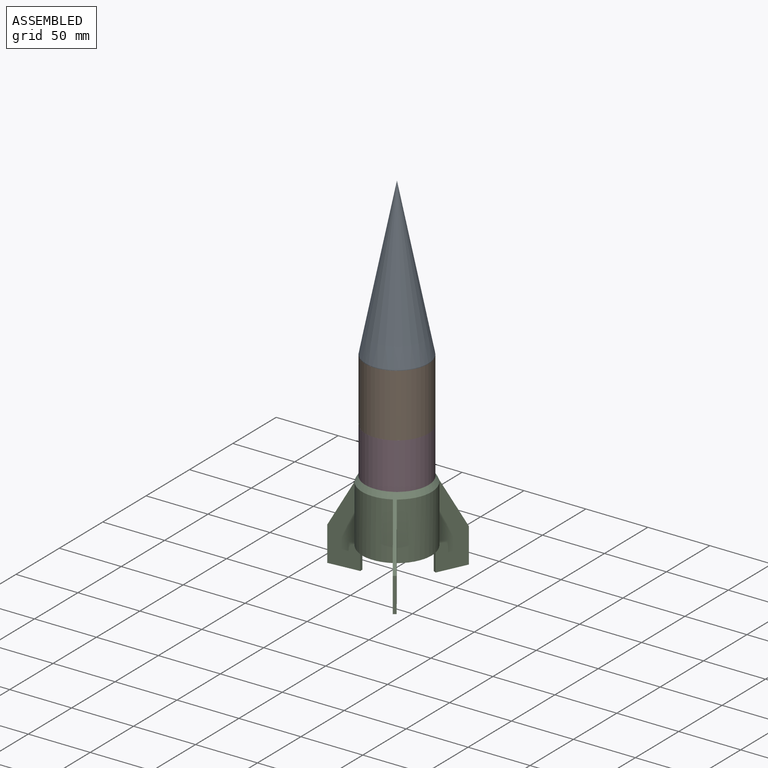
[diagram: assembled view]
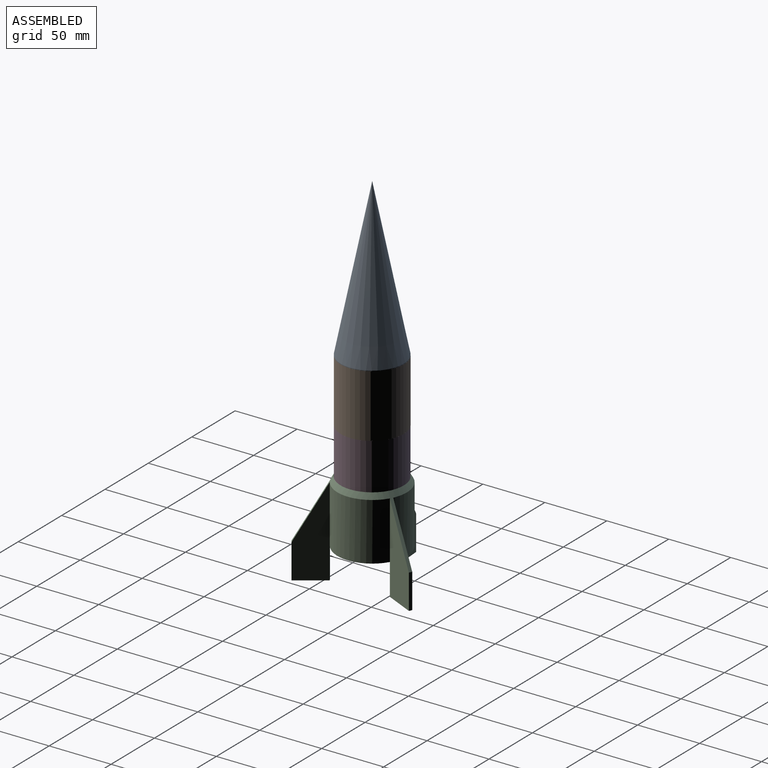
[diagram: assembled view, second angle]
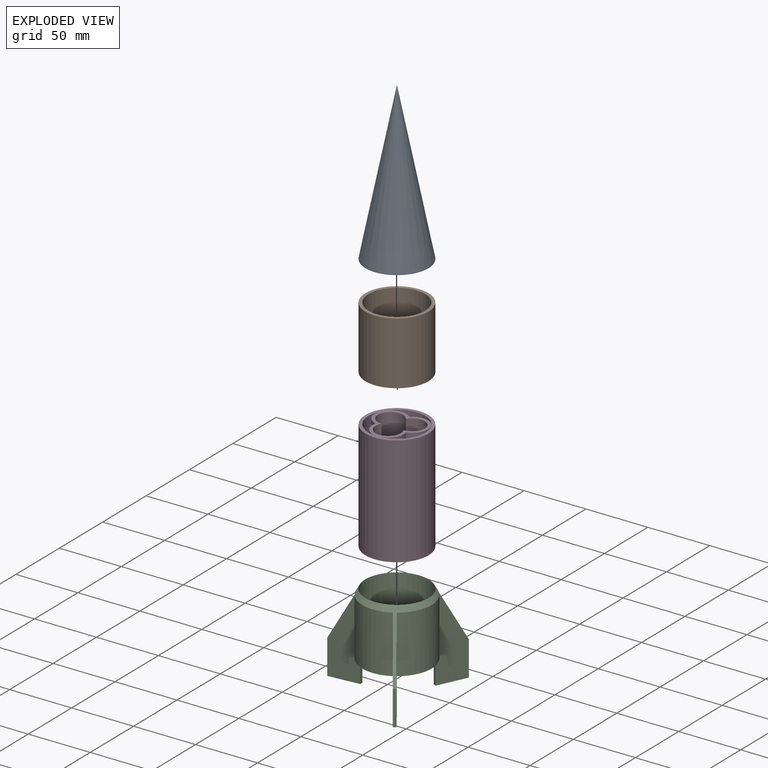
[diagram: exploded view]
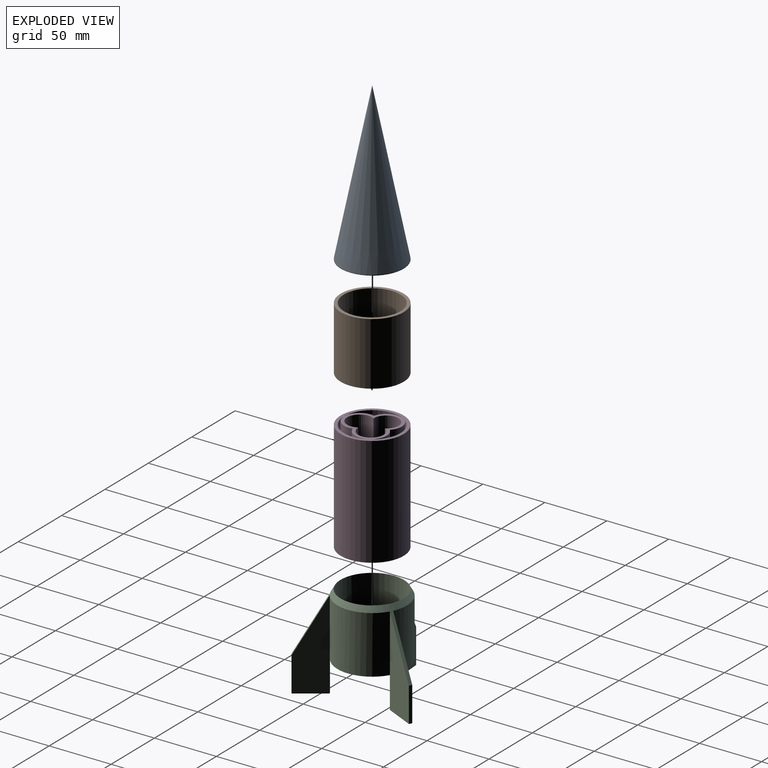
[diagram: exploded view, second angle]
ASSEMBLY  parts=4 mates=5
PART A: 5 faces, bbox 50.8x50.8x127 mm
  f0: cylinder r=25.4mm len=50.8mm, axis (0,0,-1), area 73.4mm2, adj f1,f2
  f1: plane 50.8x50.8mm, normal (0,0,-1), area 385.1mm2, adj f0,f3
  f2: cone r=25.4mm half-angle=11.3deg, axis (0,0,-1), area 10298.8mm2, adj f0
  f3: cylinder r=22.86mm len=45.72mm, axis (0,0,-1), area 29.8mm2, adj f1,f4
  f4: cone r=22.91mm half-angle=11.3deg, axis (0,0,-1), area 8342.1mm2, adj f3
PART B: 4 faces, bbox 50.8x50.8x50.8 mm
  f0: cylinder r=22.86mm len=50.8mm, axis (0,0,-1), area 7296.6mm2, adj f2,f3
  f1: cylinder r=25.4mm len=50.8mm, axis (0,0,-1), area 8107.3mm2, adj f2,f3
  f2: plane 50.8x50.8mm, normal (0,0,1), area 385.1mm2, adj f0,f1
  f3: plane 50.8x50.8mm, normal (0,0,-1), area 385.1mm2, adj f0,f1
PART C: 29 faces, bbox 83.8x93.6x76.2 mm
  f0: plane 56.13x56.13mm, normal (0,0,-1), area 427.7mm2, adj f4,f8,f12,f15,f23,f25,f27
  f1: plane 1.15x0.1mm, normal (0,0,1), area 0mm2, adj f5,f15,f21
  f2: plane 1.04x0.57mm, normal (0,0,1), area 0mm2, adj f13,f15,f22
  f3: plane 71.73x22.87mm, normal (-0.9,0.43,0), area 1260.1mm2, adj f4,f14,f22,f23,f24
  f4: cylinder r=28.07mm len=46.4mm, axis (0,0,-1), area 2609.5mm2, adj f0,f3,f5,f17,f22
  f5: plane 76.21x27.87mm, normal (-0.08,1,0), area 1268.8mm2, adj f1,f4,f6,f17,f21,f25,f26
  f6: plane 27.94x2.53mm, normal (-1,-0.08,0), area 71mm2, adj f5,f7,f21,f26
  f7: plane 71.73x25.2mm, normal (0.08,-1,0), area 1260.1mm2, adj f6,f8,f21,f25,f26
  f8: cylinder r=28.07mm len=46.4mm, axis (0,0,-1), area 2609.5mm2, adj f0,f7,f9,f19,f21
  f9: plane 76.21x22.98mm, normal (-0.82,-0.57,0), area 1268.8mm2, adj f8,f10,f16,f19,f20,f27,f28
  f10: plane 27.94x2.09mm, normal (0.57,-0.82,0), area 71mm2, adj f9,f11,f20,f28
  f11: plane 71.73x20.78mm, normal (0.82,0.57,0), area 1260.1mm2, adj f10,f12,f20,f27,f28
  f12: cylinder r=28.07mm len=47.26mm, axis (0,0,-1), area 2609.5mm2, adj f0,f11,f13,f18,f20
  f13: plane 76.21x25.29mm, normal (0.9,-0.43,0), area 1268.8mm2, adj f2,f12,f14,f18,f22,f23,f24
  f14: plane 27.94x2.3mm, normal (0.43,0.9,0), area 71mm2, adj f3,f13,f22,f24
  f15: cylinder r=25.53mm len=51.05mm, axis (0,0,-1), area 8147.5mm2, adj f0,f1,f2,f16,f17,f18,f19,f20
  f16: plane 0.99x0.65mm, normal (0,0,1), area 0mm2, adj f9,f15,f20
  f17: cone r=25.53mm half-angle=30deg, axis (0,0,-1), area 264.9mm2, adj f4,f5,f15,f22
  f18: cone r=25.53mm half-angle=30deg, axis (0,0,-1), area 264.9mm2, adj f12,f13,f15,f20
  f19: cone r=25.53mm half-angle=30deg, axis (0,0,-1), area 264.9mm2, adj f8,f9,f15,f21
  f20: plane 48.26x25.14mm, normal (0.49,-0.71,0.5), area 148.7mm2, adj f9,f10,f11,f12,f15,f16,f18
  f21: plane 48.26x28.1mm, normal (-0.86,-0.07,0.5), area 148.7mm2, adj f1,f5,f6,f7,f8,f15,f19
  f22: plane 48.26x26.29mm, normal (0.37,0.78,0.5), area 148.7mm2, adj f2,f3,f4,f13,f14,f15,f17
  f23: cylinder r=28.07mm len=25.4mm, axis (0,0,1), area 64.6mm2, adj f0,f3,f13,f24
  f24: plane 24.06x13.08mm, normal (0,0,-1), area 64.3mm2, adj f3,f13,f14,f23
  f25: cylinder r=28.07mm len=25.4mm, axis (0,0,1), area 64.6mm2, adj f0,f5,f7,f26
  f26: plane 25.41x4.63mm, normal (0,0,-1), area 64.3mm2, adj f5,f6,f7,f25
  f27: cylinder r=28.07mm len=25.4mm, axis (0,0,1), area 64.6mm2, adj f0,f9,f11,f28
  f28: plane 22.22x16.56mm, normal (0,0,-1), area 64.3mm2, adj f9,f10,f11,f27
PART D: 12 faces, bbox 50.8x50.8x88.9 mm
  f0: plane 42.87x40.52mm, normal (0,0,1), area 335mm2, adj f1,f2,f3,f7,f8,f9
  f1: cylinder r=10.13mm len=88.9mm, axis (0,0,-1), area 3770.8mm2, adj f0,f2,f3,f6
  f2: cylinder r=10.13mm len=88.9mm, axis (0,0,-1), area 3770.8mm2, adj f0,f1,f3,f6
  f3: cylinder r=10.13mm len=88.9mm, axis (0,0,-1), area 3770.8mm2, adj f0,f1,f2,f6
  f4: cylinder r=25.4mm len=88.9mm, axis (0,0,-1), area 14187.8mm2, adj f5,f6
  f5: plane 50.8x50.8mm, normal (0,0,1), area 385.1mm2, adj f4,f10
  f6: plane 50.8x50.8mm, normal (0,0,-1), area 1116.2mm2, adj f1,f2,f3,f4
  f7: cylinder r=12.67mm len=86.36mm, axis (0,0,-1), area 3964mm2, adj f0,f8,f9,f11
  f8: cylinder r=12.67mm len=86.36mm, axis (0,0,-1), area 3964mm2, adj f0,f7,f9,f11
  f9: cylinder r=12.67mm len=86.36mm, axis (0,0,-1), area 3964mm2, adj f0,f7,f8,f11
  f10: cylinder r=22.86mm len=86.36mm, axis (0,0,-1), area 12404.2mm2, adj f5,f11
  f11: plane 45.72x45.72mm, normal (0,0,1), area 396mm2, adj f7,f8,f9,f10
PLACE A t=(194.83,225.27,108.16)mm
PLACE B t=(185.46,217.29,57.36)mm
PLACE C t=(186.02,231.91,-30.89)mm
PLACE D t=(174.83,187.82,-31.54)mm
MATE planar B.f0 <-> A.f0  axis (0,0,1) through (168.81,233.94,108.16)mm
MATE planar B.f0 <-> D.f4  axis (0,0,-1) through (168.81,233.94,57.36)mm
MATE cylindrical D.f4 <-> C.f4  axis (0,0,-1) through (168.81,233.94,12.91)mm
MATE slider D.f4 <-> B.f0  axis (0,0,1) through (168.81,233.94,57.36)mm
MATE slider A.f0 <-> B.f0  axis (0,0,-1) through (168.81,233.94,108.16)mm
